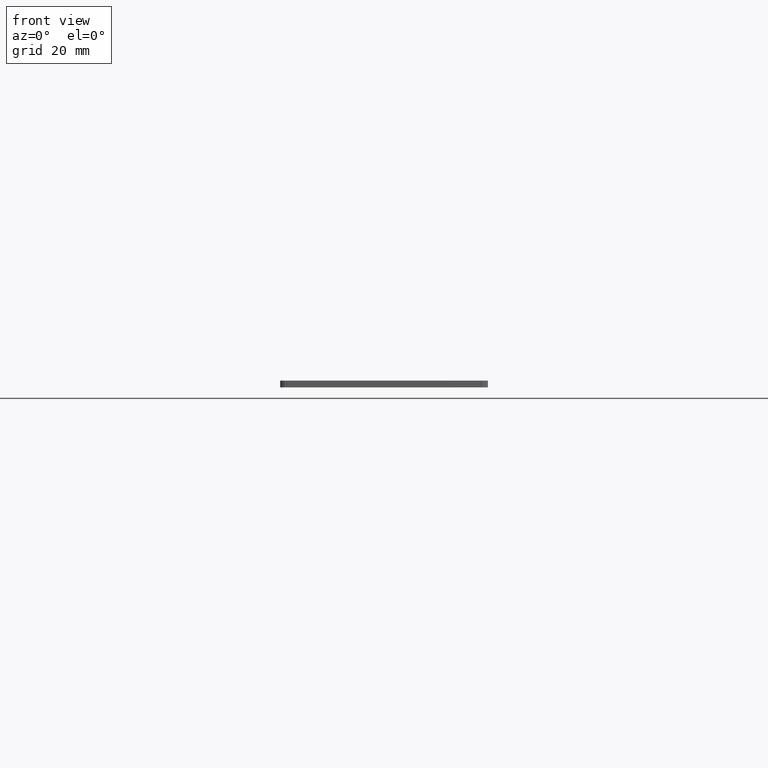
[diagram: clean part render]
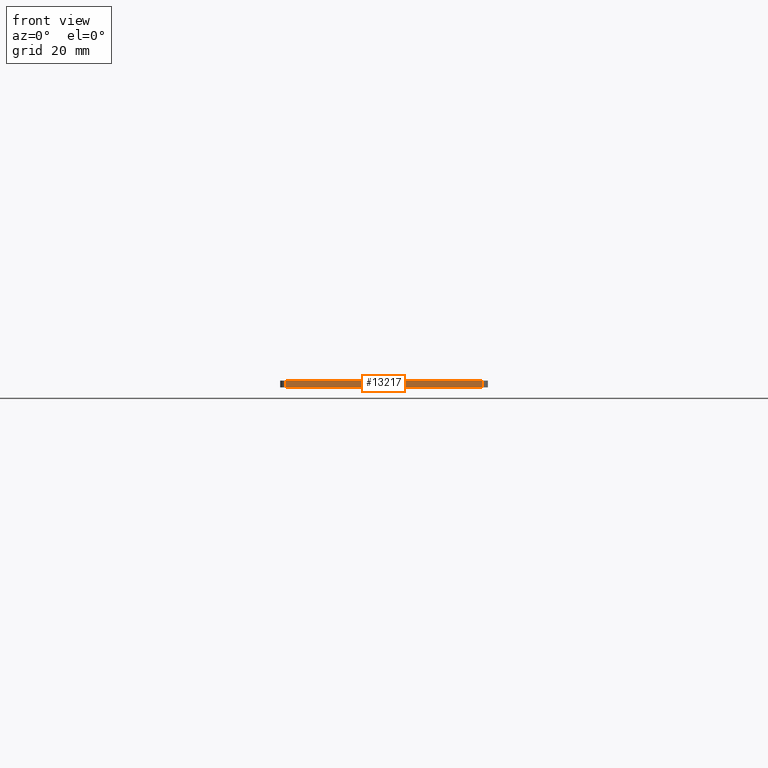
[diagram: same view with one face highlighted and labeled with its STEP entity id]
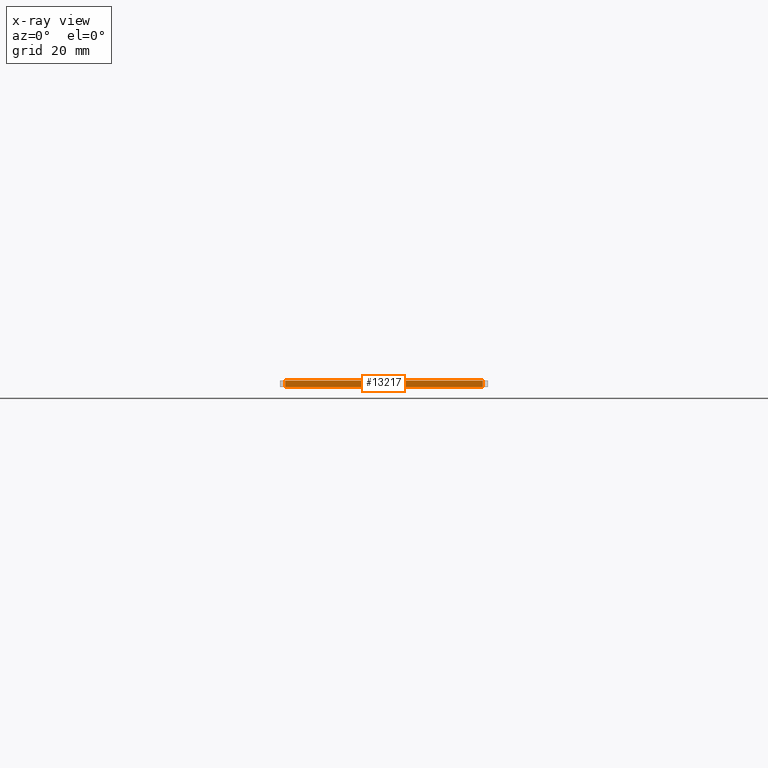
[diagram: x-ray of the same camera — body ghosted, the highlighted face saturated]
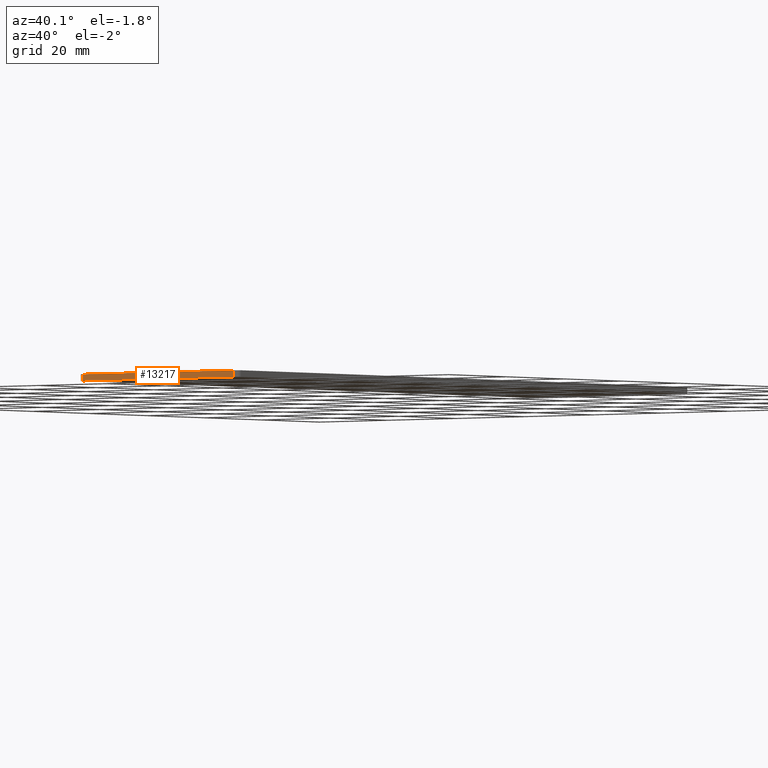
[diagram: same view with one face highlighted and labeled with its STEP entity id]
A machine part, front view. The second image highlights one B-rep face of the part: STEP entity #13217.
The next image is the same camera in x-ray: the body ghosted, the highlighted face saturated — about 0% of this face is hidden behind the body in this view.
A second angle (auxiliary view) of the same face is appended — the face is thin or edge-on in the first view.
In plain terms, the highlighted planar face has unit normal (0, 1, 0).
Its self-contained STEP definition (entity closure, byte-faithful):
#152 = ORIENTED_EDGE ( 'NONE', *, *, #7530, .T. ) ;
#1111 = DIRECTION ( 'NONE',  ( 0.0000000000000000000, 1.000000000000000000, 0.0000000000000000000 ) ) ;
#1167 = LINE ( 'NONE', #6927, #3677 ) ;
#1206 = PLANE ( 'NONE',  #12262 ) ;
#1543 = DIRECTION ( 'NONE',  ( 1.000000000000000000, 0.0000000000000000000, 0.0000000000000000000 ) ) ;
#2144 = LINE ( 'NONE', #6814, #13455 ) ;
#2928 = VECTOR ( 'NONE', #12532, 1000.000000000000000 ) ;
#2999 = VERTEX_POINT ( 'NONE', #9777 ) ;
#3088 = VECTOR ( 'NONE', #6534, 1000.000000000000000 ) ;
#3359 = ORIENTED_EDGE ( 'NONE', *, *, #6359, .T. ) ;
#3636 = VERTEX_POINT ( 'NONE', #6028 ) ;
#3677 = VECTOR ( 'NONE', #1543, 1000.000000000000000 ) ;
#5075 = CARTESIAN_POINT ( 'NONE',  ( -22.04999999999999000, -78.50000000000000000, 0.0000000000000000000 ) ) ;
#5357 = CARTESIAN_POINT ( 'NONE',  ( -23.24999999999998900, -78.50000000000000000, 1.500000000000000000 ) ) ;
#6028 = CARTESIAN_POINT ( 'NONE',  ( 22.04999999999999700, -78.50000000000000000, 1.500000000000000000 ) ) ;
#6316 = ORIENTED_EDGE ( 'NONE', *, *, #12181, .T. ) ;
#6359 = EDGE_CURVE ( 'NONE', #7978, #2999, #1167, .T. ) ;
#6534 = DIRECTION ( 'NONE',  ( 1.000000000000000000, 0.0000000000000000000, 0.0000000000000000000 ) ) ;
#6814 = CARTESIAN_POINT ( 'NONE',  ( -22.04999999999999000, -78.50000000000000000, 1.500000000000000000 ) ) ;
#6927 = CARTESIAN_POINT ( 'NONE',  ( -23.24999999999998900, -78.50000000000000000, 0.0000000000000000000 ) ) ;
#6928 = LINE ( 'NONE', #9550, #3088 ) ;
#7281 = EDGE_LOOP ( 'NONE', ( #3359, #6316, #12994, #152 ) ) ;
#7402 = CARTESIAN_POINT ( 'NONE',  ( -22.04999999999999000, -78.50000000000000000, 1.500000000000000000 ) ) ;
#7530 = EDGE_CURVE ( 'NONE', #7642, #7978, #2144, .T. ) ;
#7642 = VERTEX_POINT ( 'NONE', #7402 ) ;
#7978 = VERTEX_POINT ( 'NONE', #5075 ) ;
#8875 = FACE_OUTER_BOUND ( 'NONE', #7281, .T. ) ;
#9239 = DIRECTION ( 'NONE',  ( -0.0000000000000000000, 0.0000000000000000000, -1.000000000000000000 ) ) ;
#9550 = CARTESIAN_POINT ( 'NONE',  ( -23.24999999999998900, -78.50000000000000000, 1.500000000000000000 ) ) ;
#9777 = CARTESIAN_POINT ( 'NONE',  ( 22.04999999999999700, -78.50000000000000000, 0.0000000000000000000 ) ) ;
#11037 = LINE ( 'NONE', #11479, #2928 ) ;
#11479 = CARTESIAN_POINT ( 'NONE',  ( 22.05000000000001100, -78.50000000000000000, 1.500000000000000000 ) ) ;
#12181 = EDGE_CURVE ( 'NONE', #2999, #3636, #11037, .T. ) ;
#12262 = AXIS2_PLACEMENT_3D ( 'NONE', #5357, #1111, #12761 ) ;
#12532 = DIRECTION ( 'NONE',  ( -0.0000000000000000000, -0.0000000000000000000, 1.000000000000000000 ) ) ;
#12761 = DIRECTION ( 'NONE',  ( 0.0000000000000000000, -0.0000000000000000000, 1.000000000000000000 ) ) ;
#12994 = ORIENTED_EDGE ( 'NONE', *, *, #13154, .F. ) ;
#13154 = EDGE_CURVE ( 'NONE', #7642, #3636, #6928, .T. ) ;
#13217 = ADVANCED_FACE ( 'NONE', ( #8875 ), #1206, .F. ) ;
#13455 = VECTOR ( 'NONE', #9239, 1000.000000000000000 ) ;